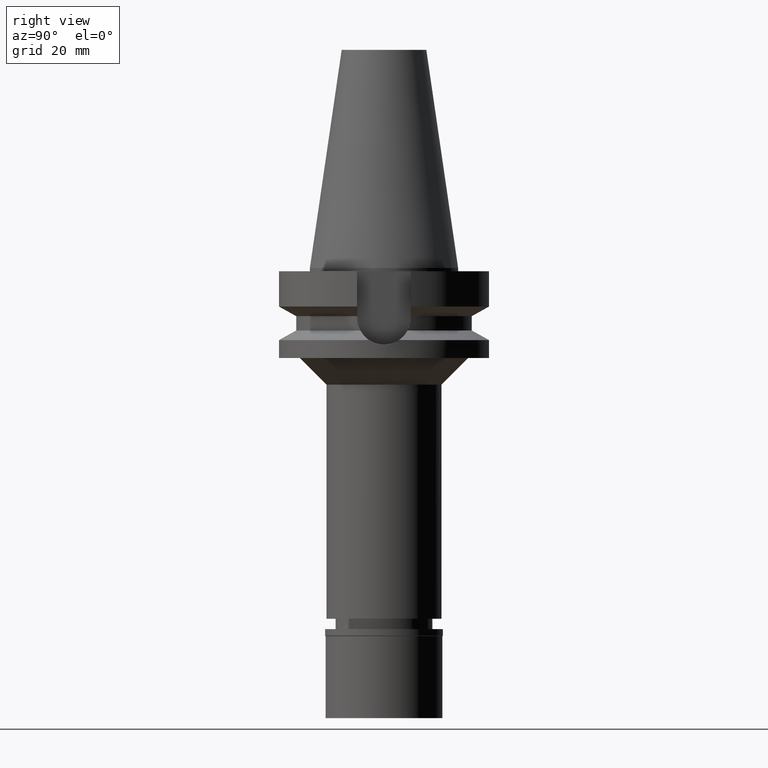
[diagram: clean part render]
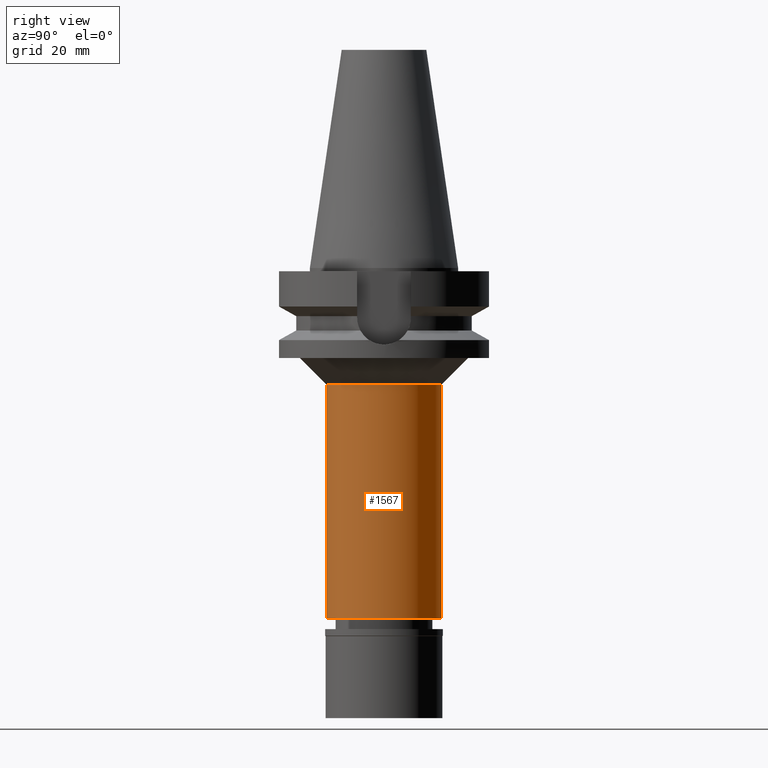
[diagram: same view with one face highlighted and labeled with its STEP entity id]
A machine part, right view. The second image highlights one B-rep face of the part: STEP entity #1567.
In plain terms, the highlighted cylindrical surface (partial cylindrical patch) has radius 17.25 mm, axis along (0, 0, -1).
Its self-contained STEP definition (entity closure, byte-faithful):
#84 = CIRCLE ( 'NONE', #2397, 17.25000000000000000 ) ;
#103 = ORIENTED_EDGE ( 'NONE', *, *, #2223, .F. ) ;
#200 = DIRECTION ( 'NONE',  ( 0.0000000000000000000, 0.0000000000000000000, -1.000000000000000000 ) ) ;
#232 = ORIENTED_EDGE ( 'NONE', *, *, #430, .T. ) ;
#315 = CARTESIAN_POINT ( 'NONE',  ( 0.0000000000000000000, 0.0000000000000000000, -35.00000000000000000 ) ) ;
#419 = CARTESIAN_POINT ( 'NONE',  ( 0.0000000000000000000, 17.25000000000000000, -35.00000000000000000 ) ) ;
#430 = EDGE_CURVE ( 'NONE', #1455, #1744, #84, .T. ) ;
#462 = CARTESIAN_POINT ( 'NONE',  ( 0.0000000000000000000, -17.25000000000000000, -105.2000000000000028 ) ) ;
#513 = LINE ( 'NONE', #1472, #2143 ) ;
#660 = ORIENTED_EDGE ( 'NONE', *, *, #2447, .T. ) ;
#734 = ORIENTED_EDGE ( 'NONE', *, *, #2276, .T. ) ;
#839 = DIRECTION ( 'NONE',  ( 0.0000000000000000000, -1.000000000000000000, 0.0000000000000000000 ) ) ;
#843 = DIRECTION ( 'NONE',  ( 0.0000000000000000000, 0.0000000000000000000, -1.000000000000000000 ) ) ;
#932 = CARTESIAN_POINT ( 'NONE',  ( 0.0000000000000000000, 0.0000000000000000000, -105.2000000000000028 ) ) ;
#1016 = DIRECTION ( 'NONE',  ( 0.0000000000000000000, 1.000000000000000000, 0.0000000000000000000 ) ) ;
#1037 = DIRECTION ( 'NONE',  ( 0.0000000000000000000, 0.0000000000000000000, -1.000000000000000000 ) ) ;
#1095 = VECTOR ( 'NONE', #200, 1000.000000000000000 ) ;
#1203 = DIRECTION ( 'NONE',  ( 0.0000000000000000000, 0.0000000000000000000, -1.000000000000000000 ) ) ;
#1455 = VERTEX_POINT ( 'NONE', #462 ) ;
#1456 = LINE ( 'NONE', #2841, #1095 ) ;
#1472 = CARTESIAN_POINT ( 'NONE',  ( 0.0000000000000000000, -17.25000000000000000, -35.00000000000000000 ) ) ;
#1555 = FACE_OUTER_BOUND ( 'NONE', #2717, .T. ) ;
#1567 = ADVANCED_FACE ( 'NONE', ( #1555 ), #2002, .T. ) ;
#1619 = DIRECTION ( 'NONE',  ( 0.0000000000000000000, -1.000000000000000000, 0.0000000000000000000 ) ) ;
#1673 = VERTEX_POINT ( 'NONE', #2344 ) ;
#1744 = VERTEX_POINT ( 'NONE', #3008 ) ;
#1760 = VERTEX_POINT ( 'NONE', #419 ) ;
#1843 = CIRCLE ( 'NONE', #2495, 17.25000000000000000 ) ;
#2002 = CYLINDRICAL_SURFACE ( 'NONE', #2307, 17.25000000000000000 ) ;
#2017 = CARTESIAN_POINT ( 'NONE',  ( 0.0000000000000000000, 0.0000000000000000000, 0.0000000000000000000 ) ) ;
#2143 = VECTOR ( 'NONE', #1203, 1000.000000000000000 ) ;
#2223 = EDGE_CURVE ( 'NONE', #1760, #1744, #1456, .T. ) ;
#2276 = EDGE_CURVE ( 'NONE', #1673, #1455, #513, .T. ) ;
#2307 = AXIS2_PLACEMENT_3D ( 'NONE', #2017, #1037, #839 ) ;
#2344 = CARTESIAN_POINT ( 'NONE',  ( 0.0000000000000000000, -17.25000000000000000, -35.00000000000000000 ) ) ;
#2397 = AXIS2_PLACEMENT_3D ( 'NONE', #932, #2870, #1619 ) ;
#2447 = EDGE_CURVE ( 'NONE', #1760, #1673, #1843, .T. ) ;
#2495 = AXIS2_PLACEMENT_3D ( 'NONE', #315, #843, #1016 ) ;
#2717 = EDGE_LOOP ( 'NONE', ( #660, #734, #232, #103 ) ) ;
#2841 = CARTESIAN_POINT ( 'NONE',  ( 0.0000000000000000000, 17.25000000000000000, -35.00000000000000000 ) ) ;
#2870 = DIRECTION ( 'NONE',  ( 0.0000000000000000000, 0.0000000000000000000, 1.000000000000000000 ) ) ;
#3008 = CARTESIAN_POINT ( 'NONE',  ( 0.0000000000000000000, 17.25000000000000000, -105.2000000000000028 ) ) ;